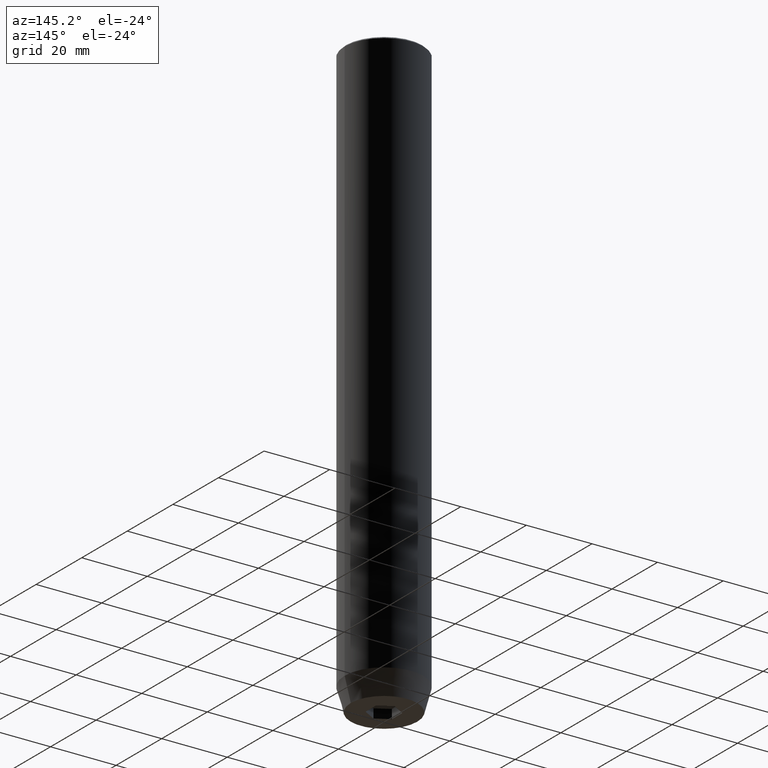
[diagram: clean part render]
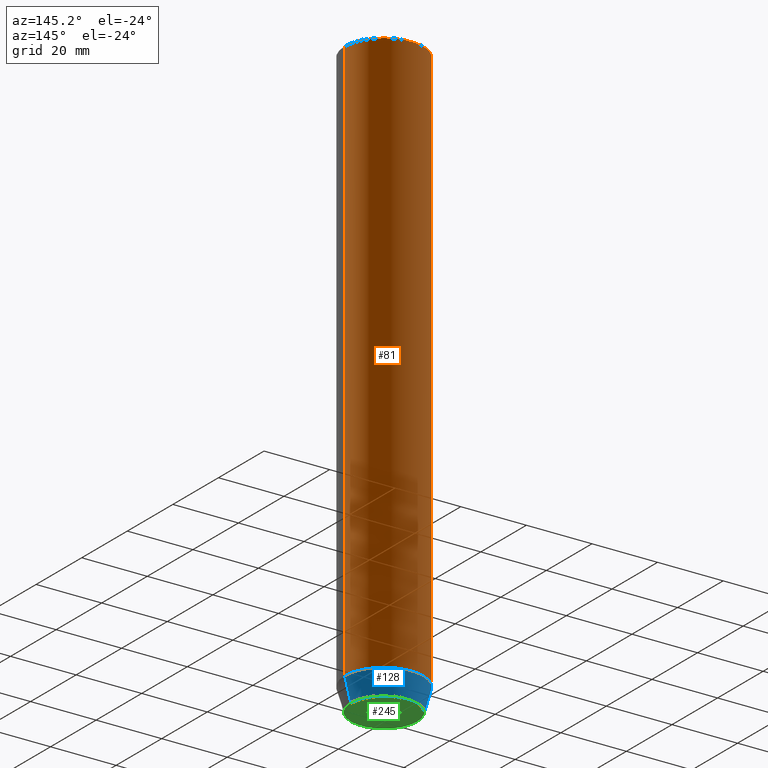
[diagram: same view with three faces highlighted in distinct colors, each labeled with its STEP entity id]
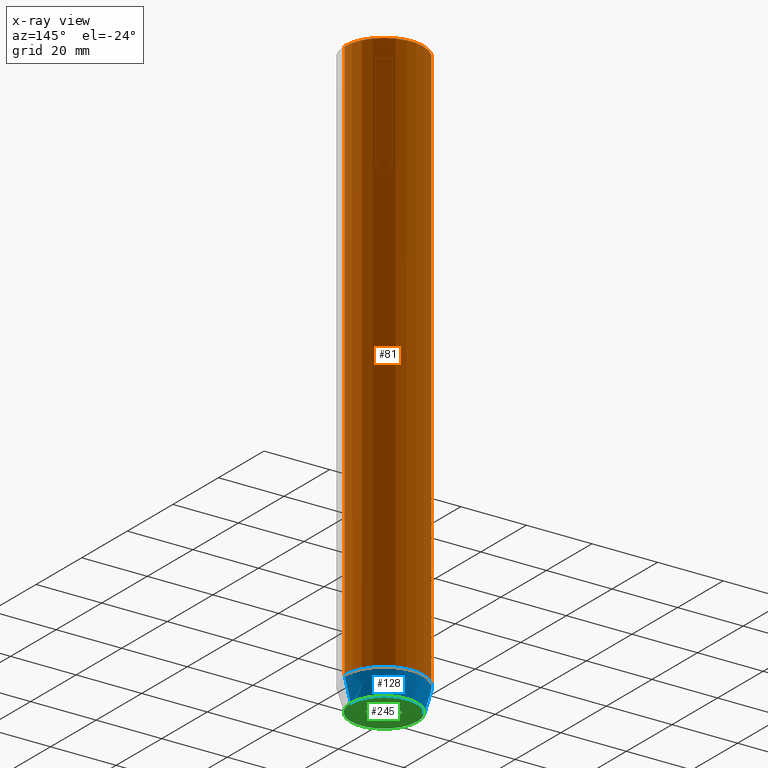
[diagram: x-ray of the same camera — body ghosted, the three highlighted faces saturated]
A machine part, auxiliary view with three faces highlighted in distinct colors.
The next image is the same camera in x-ray (body ghosted, the three faces saturated) — at least one of them is partly hidden behind the body in this view.
Their STEP definitions:

[orange] entity #81 — the highlighted cylindrical surface (partial cylindrical patch) has radius 12 mm, axis along (-0, -0, 1).
#14 = DIRECTION ( 'NONE',  ( -0.000000000000000000, -0.000000000000000000, 1.000000000000000000 ) ) ;
#23 = EDGE_CURVE ( 'NONE', #363, #500, #420, .T. ) ;
#25 = AXIS2_PLACEMENT_3D ( 'NONE', #169, #145, #304 ) ;
#37 = CARTESIAN_POINT ( 'NONE',  ( -12.00000000000000000, 1.469576158976823947E-15, -173.0000000000000000 ) ) ;
#53 = LINE ( 'NONE', #518, #238 ) ;
#54 = VERTEX_POINT ( 'NONE', #127 ) ;
#64 = DIRECTION ( 'NONE',  ( 1.000000000000000000, 0.000000000000000000, 0.000000000000000000 ) ) ;
#81 = ADVANCED_FACE ( 'NONE', ( #446 ), #165, .T. ) ;
#123 = EDGE_LOOP ( 'NONE', ( #356, #287, #413, #311 ) ) ;
#127 = CARTESIAN_POINT ( 'NONE',  ( 12.00000000000000000, 0.000000000000000000, -0.4999999999999501510 ) ) ;
#145 = DIRECTION ( 'NONE',  ( -0.000000000000000000, -0.000000000000000000, 1.000000000000000000 ) ) ;
#165 = CYLINDRICAL_SURFACE ( 'NONE', #25, 12.00000000000000000 ) ;
#169 = CARTESIAN_POINT ( 'NONE',  ( 0.000000000000000000, 0.000000000000000000, 0.000000000000000000 ) ) ;
#195 = DIRECTION ( 'NONE',  ( 1.000000000000000000, 0.000000000000000000, 0.000000000000000000 ) ) ;
#203 = AXIS2_PLACEMENT_3D ( 'NONE', #582, #14, #195 ) ;
#213 = CARTESIAN_POINT ( 'NONE',  ( -12.00000000000000000, 1.469576158976823947E-15, -0.4999999999999501510 ) ) ;
#228 = EDGE_CURVE ( 'NONE', #482, #54, #385, .T. ) ;
#229 = LINE ( 'NONE', #329, #290 ) ;
#238 = VECTOR ( 'NONE', #280, 1000.000000000000000 ) ;
#280 = DIRECTION ( 'NONE',  ( -0.000000000000000000, -0.000000000000000000, 1.000000000000000000 ) ) ;
#282 = CARTESIAN_POINT ( 'NONE',  ( 12.00000000000000000, 0.000000000000000000, -173.0000000000000000 ) ) ;
#287 = ORIENTED_EDGE ( 'NONE', *, *, #530, .T. ) ;
#289 = AXIS2_PLACEMENT_3D ( 'NONE', #470, #291, #64 ) ;
#290 = VECTOR ( 'NONE', #523, 1000.000000000000000 ) ;
#291 = DIRECTION ( 'NONE',  ( 0.000000000000000000, 0.000000000000000000, -1.000000000000000000 ) ) ;
#304 = DIRECTION ( 'NONE',  ( 1.000000000000000000, 0.000000000000000000, 0.000000000000000000 ) ) ;
#311 = ORIENTED_EDGE ( 'NONE', *, *, #549, .F. ) ;
#329 = CARTESIAN_POINT ( 'NONE',  ( -12.00000000000000000, 1.469576158976823947E-15, 0.000000000000000000 ) ) ;
#356 = ORIENTED_EDGE ( 'NONE', *, *, #23, .T. ) ;
#363 = VERTEX_POINT ( 'NONE', #282 ) ;
#385 = CIRCLE ( 'NONE', #289, 12.00000000000000000 ) ;
#413 = ORIENTED_EDGE ( 'NONE', *, *, #228, .T. ) ;
#420 = CIRCLE ( 'NONE', #203, 12.00000000000000000 ) ;
#446 = FACE_OUTER_BOUND ( 'NONE', #123, .T. ) ;
#470 = CARTESIAN_POINT ( 'NONE',  ( 0.000000000000000000, 0.000000000000000000, -0.4999999999999501510 ) ) ;
#482 = VERTEX_POINT ( 'NONE', #213 ) ;
#500 = VERTEX_POINT ( 'NONE', #37 ) ;
#518 = CARTESIAN_POINT ( 'NONE',  ( 12.00000000000000000, 0.000000000000000000, 0.000000000000000000 ) ) ;
#523 = DIRECTION ( 'NONE',  ( -0.000000000000000000, -0.000000000000000000, 1.000000000000000000 ) ) ;
#530 = EDGE_CURVE ( 'NONE', #500, #482, #229, .T. ) ;
#549 = EDGE_CURVE ( 'NONE', #363, #54, #53, .T. ) ;
#582 = CARTESIAN_POINT ( 'NONE',  ( 0.000000000000000000, 0.000000000000000000, -173.0000000000000000 ) ) ;

[blue] entity #128 — the highlighted conical surface has half-angle 15 deg.
#4 = EDGE_CURVE ( 'NONE', #230, #500, #580, .T. ) ;
#14 = DIRECTION ( 'NONE',  ( -0.000000000000000000, -0.000000000000000000, 1.000000000000000000 ) ) ;
#20 = VECTOR ( 'NONE', #286, 1000.000000000000000 ) ;
#23 = EDGE_CURVE ( 'NONE', #363, #500, #420, .T. ) ;
#32 = DIRECTION ( 'NONE',  ( -0.2588190451025213501, 3.169619151431772337E-17, 0.9659258262890680902 ) ) ;
#37 = CARTESIAN_POINT ( 'NONE',  ( -12.00000000000000000, 1.469576158976823947E-15, -173.0000000000000000 ) ) ;
#38 = ORIENTED_EDGE ( 'NONE', *, *, #251, .F. ) ;
#41 = ORIENTED_EDGE ( 'NONE', *, *, #4, .T. ) ;
#61 = DIRECTION ( 'NONE',  ( 1.000000000000000000, 0.000000000000000000, 0.000000000000000000 ) ) ;
#85 = CARTESIAN_POINT ( 'NONE',  ( -12.00000000000000000, 1.469576158976823947E-15, -173.0000000000000000 ) ) ;
#87 = CONICAL_SURFACE ( 'NONE', #513, 12.00000000000000000, 0.2617993877991500740 ) ;
#118 = DIRECTION ( 'NONE',  ( 1.000000000000000000, 0.000000000000000000, 0.000000000000000000 ) ) ;
#128 = ADVANCED_FACE ( 'NONE', ( #471 ), #87, .T. ) ;
#150 = EDGE_LOOP ( 'NONE', ( #256, #41, #264, #38 ) ) ;
#168 = DIRECTION ( 'NONE',  ( -0.000000000000000000, -0.000000000000000000, 1.000000000000000000 ) ) ;
#195 = DIRECTION ( 'NONE',  ( 1.000000000000000000, 0.000000000000000000, 0.000000000000000000 ) ) ;
#203 = AXIS2_PLACEMENT_3D ( 'NONE', #582, #14, #195 ) ;
#209 = CARTESIAN_POINT ( 'NONE',  ( -10.12435565298213547, 1.354726066681111050E-15, -180.0000000000000000 ) ) ;
#230 = VERTEX_POINT ( 'NONE', #209 ) ;
#248 = CARTESIAN_POINT ( 'NONE',  ( 0.000000000000000000, 0.000000000000000000, -173.0000000000000000 ) ) ;
#251 = EDGE_CURVE ( 'NONE', #410, #363, #562, .T. ) ;
#256 = ORIENTED_EDGE ( 'NONE', *, *, #288, .T. ) ;
#264 = ORIENTED_EDGE ( 'NONE', *, *, #23, .F. ) ;
#277 = CARTESIAN_POINT ( 'NONE',  ( 12.00000000000000000, 0.000000000000000000, -173.0000000000000000 ) ) ;
#282 = CARTESIAN_POINT ( 'NONE',  ( 12.00000000000000000, 0.000000000000000000, -173.0000000000000000 ) ) ;
#286 = DIRECTION ( 'NONE',  ( 0.2588190451025213501, 0.000000000000000000, 0.9659258262890680902 ) ) ;
#288 = EDGE_CURVE ( 'NONE', #410, #230, #375, .T. ) ;
#309 = AXIS2_PLACEMENT_3D ( 'NONE', #515, #460, #61 ) ;
#363 = VERTEX_POINT ( 'NONE', #282 ) ;
#375 = CIRCLE ( 'NONE', #309, 10.12435565298213547 ) ;
#410 = VERTEX_POINT ( 'NONE', #527 ) ;
#420 = CIRCLE ( 'NONE', #203, 12.00000000000000000 ) ;
#460 = DIRECTION ( 'NONE',  ( -0.000000000000000000, -0.000000000000000000, 1.000000000000000000 ) ) ;
#471 = FACE_OUTER_BOUND ( 'NONE', #150, .T. ) ;
#500 = VERTEX_POINT ( 'NONE', #37 ) ;
#513 = AXIS2_PLACEMENT_3D ( 'NONE', #248, #168, #118 ) ;
#515 = CARTESIAN_POINT ( 'NONE',  ( 0.000000000000000000, 0.000000000000000000, -180.0000000000000000 ) ) ;
#527 = CARTESIAN_POINT ( 'NONE',  ( 10.12435565298213547, 0.000000000000000000, -180.0000000000000000 ) ) ;
#533 = VECTOR ( 'NONE', #32, 1000.000000000000000 ) ;
#562 = LINE ( 'NONE', #277, #20 ) ;
#580 = LINE ( 'NONE', #85, #533 ) ;
#582 = CARTESIAN_POINT ( 'NONE',  ( 0.000000000000000000, 0.000000000000000000, -173.0000000000000000 ) ) ;

[green] entity #245 — the highlighted planar face has unit normal (0, 0, -1).
#10 = ORIENTED_EDGE ( 'NONE', *, *, #116, .F. ) ;
#27 = LINE ( 'NONE', #71, #78 ) ;
#28 = LINE ( 'NONE', #396, #130 ) ;
#34 = DIRECTION ( 'NONE',  ( 0.8660254037844385966, -0.5000000000000001110, 0.000000000000000000 ) ) ;
#39 = VERTEX_POINT ( 'NONE', #250 ) ;
#51 = CARTESIAN_POINT ( 'NONE',  ( -4.000000000000000000, 2.309401076758503368, -180.0000000000000000 ) ) ;
#52 = LINE ( 'NONE', #235, #456 ) ;
#58 = CARTESIAN_POINT ( 'NONE',  ( 0.000000000000000000, 10.12435565298213547, -180.0000000000000000 ) ) ;
#61 = DIRECTION ( 'NONE',  ( 1.000000000000000000, 0.000000000000000000, 0.000000000000000000 ) ) ;
#71 = CARTESIAN_POINT ( 'NONE',  ( 2.000000000000000444, 3.464101615137754386, -180.0000000000000000 ) ) ;
#78 = VECTOR ( 'NONE', #34, 1000.000000000000000 ) ;
#95 = VERTEX_POINT ( 'NONE', #361 ) ;
#96 = DIRECTION ( 'NONE',  ( 0.000000000000000000, 1.000000000000000000, 0.000000000000000000 ) ) ;
#103 = DIRECTION ( 'NONE',  ( 0.000000000000000000, 0.000000000000000000, -1.000000000000000000 ) ) ;
#107 = FACE_OUTER_BOUND ( 'NONE', #464, .T. ) ;
#113 = DIRECTION ( 'NONE',  ( 0.8660254037844387076, 0.5000000000000001110, 0.000000000000000000 ) ) ;
#116 = EDGE_CURVE ( 'NONE', #95, #39, #161, .T. ) ;
#122 = CARTESIAN_POINT ( 'NONE',  ( -4.000000000000000000, -2.309401076758503368, -180.0000000000000000 ) ) ;
#130 = VECTOR ( 'NONE', #548, 1000.000000000000114 ) ;
#148 = VERTEX_POINT ( 'NONE', #122 ) ;
#160 = CARTESIAN_POINT ( 'NONE',  ( 0.000000000000000000, 4.618802153517006737, -180.0000000000000000 ) ) ;
#161 = LINE ( 'NONE', #201, #516 ) ;
#164 = CARTESIAN_POINT ( 'NONE',  ( -2.000000000000000000, 3.464101615137754830, -180.0000000000000000 ) ) ;
#170 = PLANE ( 'NONE',  #454 ) ;
#177 = EDGE_LOOP ( 'NONE', ( #561, #452, #415, #10, #373, #444 ) ) ;
#182 = VECTOR ( 'NONE', #113, 999.9999999999998863 ) ;
#198 = LINE ( 'NONE', #164, #182 ) ;
#201 = CARTESIAN_POINT ( 'NONE',  ( 2.000000000000000888, -3.464101615137754386, -180.0000000000000000 ) ) ;
#208 = EDGE_CURVE ( 'NONE', #230, #410, #498, .T. ) ;
#209 = CARTESIAN_POINT ( 'NONE',  ( -10.12435565298213547, 1.354726066681111050E-15, -180.0000000000000000 ) ) ;
#215 = ORIENTED_EDGE ( 'NONE', *, *, #288, .F. ) ;
#230 = VERTEX_POINT ( 'NONE', #209 ) ;
#233 = ORIENTED_EDGE ( 'NONE', *, *, #208, .F. ) ;
#235 = CARTESIAN_POINT ( 'NONE',  ( -4.000000000000000000, 0.000000000000000000, -180.0000000000000000 ) ) ;
#243 = VERTEX_POINT ( 'NONE', #160 ) ;
#245 = ADVANCED_FACE ( 'NONE', ( #340, #107 ), #170, .T. ) ;
#250 = CARTESIAN_POINT ( 'NONE',  ( 4.336808689942017736E-16, -4.618802153517006737, -180.0000000000000000 ) ) ;
#283 = CARTESIAN_POINT ( 'NONE',  ( 4.000000000000000000, 2.309401076758503368, -180.0000000000000000 ) ) ;
#285 = DIRECTION ( 'NONE',  ( 1.000000000000000000, 0.000000000000000000, 0.000000000000000000 ) ) ;
#288 = EDGE_CURVE ( 'NONE', #410, #230, #375, .T. ) ;
#305 = CARTESIAN_POINT ( 'NONE',  ( 4.000000000000000000, 0.000000000000000000, -180.0000000000000000 ) ) ;
#309 = AXIS2_PLACEMENT_3D ( 'NONE', #515, #460, #61 ) ;
#323 = VERTEX_POINT ( 'NONE', #51 ) ;
#340 = FACE_BOUND ( 'NONE', #177, .T. ) ;
#360 = AXIS2_PLACEMENT_3D ( 'NONE', #367, #493, #285 ) ;
#361 = CARTESIAN_POINT ( 'NONE',  ( 4.000000000000000000, -2.309401076758502480, -180.0000000000000000 ) ) ;
#362 = EDGE_CURVE ( 'NONE', #148, #323, #52, .T. ) ;
#367 = CARTESIAN_POINT ( 'NONE',  ( 0.000000000000000000, 0.000000000000000000, -180.0000000000000000 ) ) ;
#373 = ORIENTED_EDGE ( 'NONE', *, *, #439, .F. ) ;
#375 = CIRCLE ( 'NONE', #309, 10.12435565298213547 ) ;
#396 = CARTESIAN_POINT ( 'NONE',  ( -2.000000000000000888, -3.464101615137754386, -180.0000000000000000 ) ) ;
#410 = VERTEX_POINT ( 'NONE', #527 ) ;
#415 = ORIENTED_EDGE ( 'NONE', *, *, #447, .F. ) ;
#432 = DIRECTION ( 'NONE',  ( -0.8660254037844384856, -0.5000000000000002220, 0.000000000000000000 ) ) ;
#439 = EDGE_CURVE ( 'NONE', #486, #95, #442, .T. ) ;
#442 = LINE ( 'NONE', #305, #517 ) ;
#444 = ORIENTED_EDGE ( 'NONE', *, *, #477, .F. ) ;
#447 = EDGE_CURVE ( 'NONE', #39, #148, #28, .T. ) ;
#452 = ORIENTED_EDGE ( 'NONE', *, *, #362, .F. ) ;
#454 = AXIS2_PLACEMENT_3D ( 'NONE', #58, #103, #564 ) ;
#456 = VECTOR ( 'NONE', #96, 1000.000000000000000 ) ;
#460 = DIRECTION ( 'NONE',  ( -0.000000000000000000, -0.000000000000000000, 1.000000000000000000 ) ) ;
#464 = EDGE_LOOP ( 'NONE', ( #215, #233 ) ) ;
#477 = EDGE_CURVE ( 'NONE', #243, #486, #27, .T. ) ;
#486 = VERTEX_POINT ( 'NONE', #283 ) ;
#493 = DIRECTION ( 'NONE',  ( -0.000000000000000000, -0.000000000000000000, 1.000000000000000000 ) ) ;
#498 = CIRCLE ( 'NONE', #360, 10.12435565298213547 ) ;
#515 = CARTESIAN_POINT ( 'NONE',  ( 0.000000000000000000, 0.000000000000000000, -180.0000000000000000 ) ) ;
#516 = VECTOR ( 'NONE', #432, 1000.000000000000114 ) ;
#517 = VECTOR ( 'NONE', #572, 1000.000000000000000 ) ;
#527 = CARTESIAN_POINT ( 'NONE',  ( 10.12435565298213547, 0.000000000000000000, -180.0000000000000000 ) ) ;
#548 = DIRECTION ( 'NONE',  ( -0.8660254037844384856, 0.5000000000000002220, 0.000000000000000000 ) ) ;
#561 = ORIENTED_EDGE ( 'NONE', *, *, #571, .F. ) ;
#564 = DIRECTION ( 'NONE',  ( -1.000000000000000000, 0.000000000000000000, -0.000000000000000000 ) ) ;
#571 = EDGE_CURVE ( 'NONE', #323, #243, #198, .T. ) ;
#572 = DIRECTION ( 'NONE',  ( 0.000000000000000000, -1.000000000000000000, 0.000000000000000000 ) ) ;